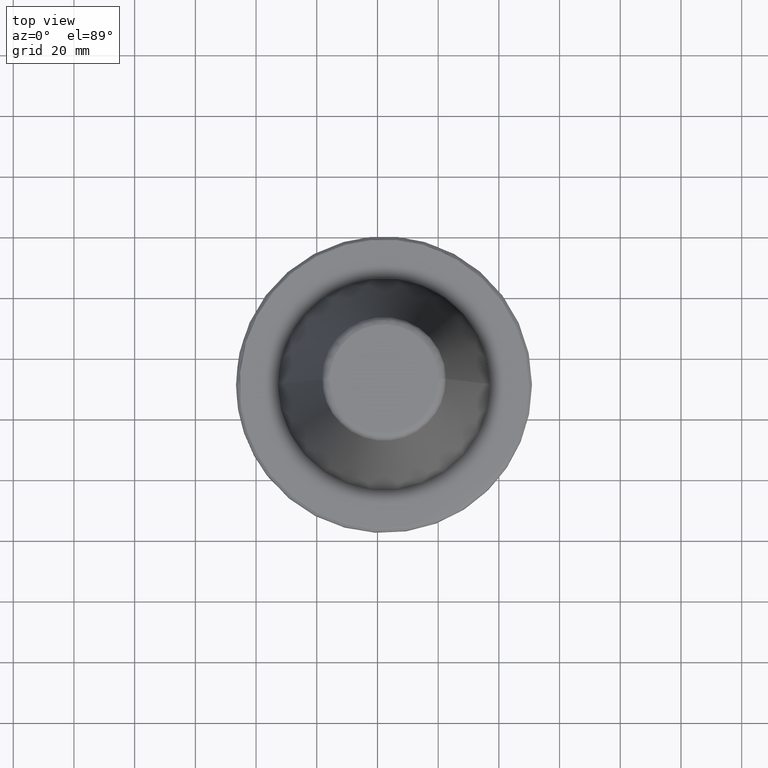
[diagram: clean part render]
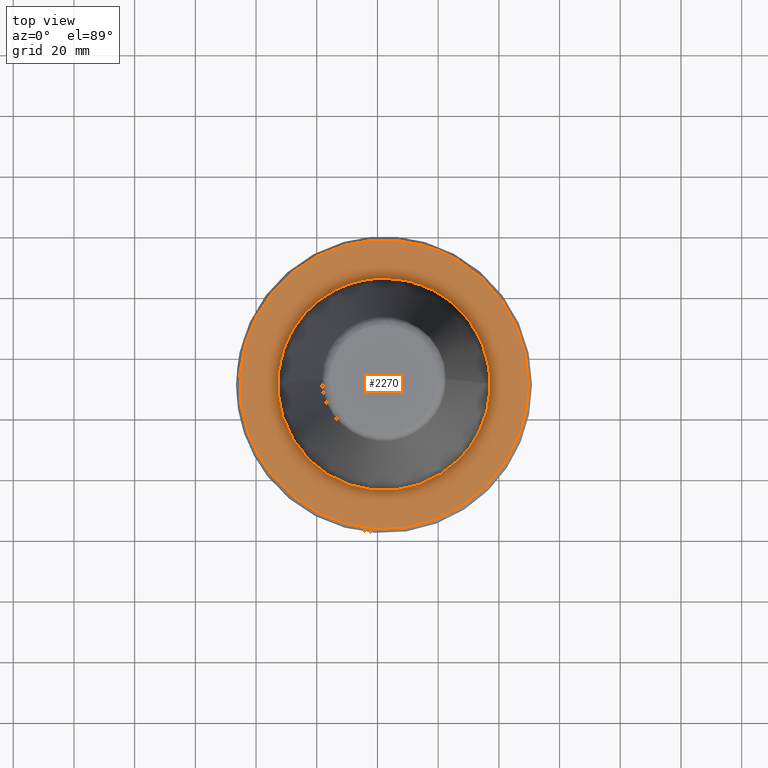
[diagram: same view with one face highlighted and labeled with its STEP entity id]
A machine part, top view. The second image highlights one B-rep face of the part: STEP entity #2270.
In plain terms, the highlighted planar face has unit normal (0, 0, 1).
Its self-contained STEP definition (entity closure, byte-faithful):
#53 = CARTESIAN_POINT ( 'NONE',  ( 155.8001471377603800, 156.4435516789878000, 220.6002788068236700 ) ) ;
#68 = CARTESIAN_POINT ( 'NONE',  ( 103.6291192359977100, 233.9307779446736500, 220.6002788091370500 ) ) ;
#72 = B_SPLINE_CURVE_WITH_KNOTS ( 'NONE', 3,
 ( #4419, #2874, #4038, #1706, #4440, #2096, #4825, #2502, #157, #2888, #559, #3286, #957, #3661, #1344, #4060, #1723, #4453, #2115, #4844, #2519, #170, #2911, #573, #3301, #970, #3682, #1353, #4074, #1738, #4470, #2129, #4860, #2533, #184, #2926, #593, #3313, #983, #3696, #1370, #4086, #1753, #4489, #2144, #4873, #2550, #203, #2936, #606, #3328, #996, #3713, #1388, #4101, #1766, #4505, #2163, #4884, #2564, #222, #2952, #615, #3343 ),
 .UNSPECIFIED., .F., .F.,
 ( 4, 1, 1, 1, 1, 1, 2, 2, 1, 1, 1, 1, 2, 2, 1, 1, 1, 2, 2, 1, 1, 1, 1, 2, 2, 1, 1, 1, 1, 1, 2, 2, 1, 1, 1, 1, 1, 1, 1, 2, 2, 1, 1, 1, 1, 2, 2, 4 ),
 ( 0.0000000000000000000, 0.06249999999994371200, 0.09374999999991551200, 0.1093749999999021200, 0.1171874999998948200, 0.1210937499998904800, 0.1230468749998888900, 0.1249999999998873100, 0.1874999999998274700, 0.2187499999997977200, 0.2343749999997826500, 0.2421874999997753200, 0.2460937499997722900, 0.2499999999997692700, 0.3124999999997104500, 0.3437499999996814200, 0.3593749999996666000, 0.3671874999996594400, 0.3749999999996522800, 0.4374999999996045400, 0.4687499999995803400, 0.4843749999995672900, 0.4921874999995608500, 0.4960937499995579600, 0.4999999999995551300, 0.5624999999995217200, 0.5937499999995049500, 0.6093749999994971800, 0.6171874999994940700, 0.6210937499994930700, 0.6230468749994935200, 0.6249999999994939600, 0.6874999999995060600, 0.7187499999995116100, 0.7343749999995148300, 0.7421874999995158300, 0.7460937499995166100, 0.7480468749995169400, 0.7490234374995167200, 0.7495117187495162800, 0.7499999999995158300, 0.8124999999996366200, 0.8437499999996965800, 0.8593749999997266600, 0.8671874999997409800, 0.8710937499997482000, 0.8749999999997553100, 1.000000000000000000 ),
 .UNSPECIFIED. ) ;
#86 = CARTESIAN_POINT ( 'NONE',  ( 76.04199220231950600, 201.9255132570766300, 220.6002788091371700 ) ) ;
#91 = CARTESIAN_POINT ( 'NONE',  ( 95.12595174288151200, 229.2549839314573900, 220.6002788091370200 ) ) ;
#108 = CARTESIAN_POINT ( 'NONE',  ( 74.60764423819857400, 192.0191381966959600, 220.6002788091370500 ) ) ;
#114 = CARTESIAN_POINT ( 'NONE',  ( 89.44772045215734100, 224.6692275043463100, 220.6002788091370800 ) ) ;
#123 = CARTESIAN_POINT ( 'NONE',  ( 75.61717018492095100, 180.1550116282156200, 220.6002788091370200 ) ) ;
#127 = CARTESIAN_POINT ( 'NONE',  ( 82.37830007239833200, 216.2107248551481600, 220.6002788091371100 ) ) ;
#142 = EDGE_CURVE ( 'NONE', #3132, #1551, #830, .T. ) ;
#145 = CARTESIAN_POINT ( 'NONE',  ( 77.65920442019709900, 173.1951052602065000, 220.6002788091371100 ) ) ;
#157 = CARTESIAN_POINT ( 'NONE',  ( 169.1810604506380600, 197.3447926211943300, 220.6002788091371100 ) ) ;
#161 = CARTESIAN_POINT ( 'NONE',  ( 82.00232855989853000, 164.5522014022500900, 220.6002788091370500 ) ) ;
#170 = CARTESIAN_POINT ( 'NONE',  ( 164.8607630611862200, 211.0786172675604700, 220.6002788091370500 ) ) ;
#173 = CARTESIAN_POINT ( 'NONE',  ( 126.1284916712363800, 224.8661715355004300, 220.6002788091371100 ) ) ;
#184 = CARTESIAN_POINT ( 'NONE',  ( 158.0222279902567700, 221.4076538513791700, 220.6002788091371100 ) ) ;
#203 = CARTESIAN_POINT ( 'NONE',  ( 148.6336813139473300, 229.6263764022931200, 220.6002788091370200 ) ) ;
#207 = CIRCLE ( 'NONE', #3865, 47.58437541406858200 ) ;
#222 = CARTESIAN_POINT ( 'NONE',  ( 142.0572733413985700, 233.3122957326579900, 220.6002788091371700 ) ) ;
#225 = CARTESIAN_POINT ( 'NONE',  ( 95.81297173797814500, 167.0428323715684700, 220.6002788091370800 ) ) ;
#236 = CARTESIAN_POINT ( 'NONE',  ( 166.9327222374638200, 173.9705712791402200, 220.6002788091370500 ) ) ;
#238 = CARTESIAN_POINT ( 'NONE',  ( 90.57312146355410200, 174.9582293051461200, 220.6002788091371100 ) ) ;
#250 = CARTESIAN_POINT ( 'NONE',  ( 169.2158376266570200, 183.0627199777569300, 220.6002788091370500 ) ) ;
#253 = CARTESIAN_POINT ( 'NONE',  ( 87.67558861476396700, 184.0264909058661000, 220.6002788091370200 ) ) ;
#254 = CARTESIAN_POINT ( 'NONE',  ( 128.9628476496946000, 224.4389491235650100, 220.6002788091370500 ) ) ;
#273 = CARTESIAN_POINT ( 'NONE',  ( 87.64974742230192800, 196.0559378404391300, 220.6002788091371100 ) ) ;
#275 = CARTESIAN_POINT ( 'NONE',  ( 137.4920070724355100, 221.5504852539152400, 220.6002788091371100 ) ) ;
#291 = CARTESIAN_POINT ( 'NONE',  ( 90.22061486073192800, 204.4645867771987800, 220.6002788091370200 ) ) ;
#292 = CARTESIAN_POINT ( 'NONE',  ( 147.2213859548325600, 214.5815056310112300, 220.6002788091371400 ) ) ;
#304 = CARTESIAN_POINT ( 'NONE',  ( 95.71551267011658100, 213.0268857582428000, 220.6002788091370800 ) ) ;
#305 = CARTESIAN_POINT ( 'NONE',  ( 152.9824674611688200, 206.6600928291848600, 220.6002788091370000 ) ) ;
#322 = CARTESIAN_POINT ( 'NONE',  ( 103.6702187144247900, 219.8441433258232100, 220.6002788091370500 ) ) ;
#323 = CARTESIAN_POINT ( 'NONE',  ( 156.1145960560951100, 198.5564692791758400, 220.6002788091370800 ) ) ;
#347 = CARTESIAN_POINT ( 'NONE',  ( 112.3268237630479700, 223.6832549463333900, 220.6002788091370800 ) ) ;
#350 = CARTESIAN_POINT ( 'NONE',  ( 156.8230929241047400, 185.2902366288107900, 220.6002788091370800 ) ) ;
#369 = CARTESIAN_POINT ( 'NONE',  ( 121.0517783782077100, 225.0907862089343000, 220.6002788091371100 ) ) ;
#370 = CARTESIAN_POINT ( 'NONE',  ( 154.7009602241421900, 177.2206559220103900, 220.6002788091370800 ) ) ;
#374 = EDGE_CURVE ( 'NONE', #3035, #3016, #207, .T. ) ;
#385 = CARTESIAN_POINT ( 'NONE',  ( 148.5478404744880800, 167.1058220341982100, 220.6002788091370500 ) ) ;
#404 = DIRECTION ( 'NONE',  ( -0.0000000000000000000, -0.0000000000000000000, 1.000000000000000000 ) ) ;
#479 = CARTESIAN_POINT ( 'NONE',  ( 100.9811823710179500, 232.7098020516819800, 220.6002788091370800 ) ) ;
#489 = CARTESIAN_POINT ( 'NONE',  ( 75.44463550959351000, 199.1864029814518300, 220.6002788091371100 ) ) ;
#492 = CARTESIAN_POINT ( 'NONE',  ( 94.88436574065669000, 229.0868632615086000, 220.6002788091370800 ) ) ;
#509 = CARTESIAN_POINT ( 'NONE',  ( 74.55428108414639600, 189.3546909606816400, 220.6002788091370800 ) ) ;
#515 = CARTESIAN_POINT ( 'NONE',  ( 87.14042380711136100, 222.3219421611272500, 220.6002788091370800 ) ) ;
#534 = CARTESIAN_POINT ( 'NONE',  ( 75.68463715941852900, 179.8452908439896600, 220.6002788091371400 ) ) ;
#538 = CARTESIAN_POINT ( 'NONE',  ( 82.27201957790276800, 216.0481669466098800, 220.6002788091371100 ) ) ;
#550 = CARTESIAN_POINT ( 'NONE',  ( 78.83891718227994300, 170.3789838799925500, 220.6002788091370200 ) ) ;
#559 = CARTESIAN_POINT ( 'NONE',  ( 168.9728745589463000, 198.6819042995131500, 220.6002788091370800 ) ) ;
#562 = CARTESIAN_POINT ( 'NONE',  ( 123.2535724787378900, 225.0907862163495600, 220.6002788091370000 ) ) ;
#563 = CARTESIAN_POINT ( 'NONE',  ( 82.15383483436548300, 164.3159658804669000, 220.6002788091370500 ) ) ;
#573 = CARTESIAN_POINT ( 'NONE',  ( 164.4902445898817700, 211.8126621360202600, 220.6002788091371100 ) ) ;
#578 = CARTESIAN_POINT ( 'NONE',  ( 126.7426670279654400, 224.7885562506083400, 220.6002788091370000 ) ) ;
#593 = CARTESIAN_POINT ( 'NONE',  ( 155.6380104850801200, 223.9024105018788800, 220.6002788091370800 ) ) ;
#606 = CARTESIAN_POINT ( 'NONE',  ( 148.4464681726823000, 229.7509812610899200, 220.6002788091369700 ) ) ;
#615 = CARTESIAN_POINT ( 'NONE',  ( 137.3981881280923000, 235.2354118505047300, 220.6002788091371400 ) ) ;
#618 = CARTESIAN_POINT ( 'NONE',  ( 95.75735902823210200, 167.1065370895217100, 220.6002788091370800 ) ) ;
#638 = CARTESIAN_POINT ( 'NONE',  ( 167.3435262829257800, 175.1882700185617500, 220.6002788091370500 ) ) ;
#644 = CARTESIAN_POINT ( 'NONE',  ( 89.60462509200429800, 177.2212920827688800, 220.6002788091370500 ) ) ;
#658 = CARTESIAN_POINT ( 'NONE',  ( 169.6345008767820600, 186.4025194768163100, 220.6002788091370200 ) ) ;
#660 = CARTESIAN_POINT ( 'NONE',  ( 87.48269737175571900, 185.2906391490099100, 220.6002788091370200 ) ) ;
#662 = CARTESIAN_POINT ( 'NONE',  ( 131.4550891671346700, 223.8338864362215200, 220.6002788091370500 ) ) ;
#674 = CARTESIAN_POINT ( 'NONE',  ( 88.12977335554795400, 198.3060878224701800, 220.6002788091370500 ) ) ;
#675 = CARTESIAN_POINT ( 'NONE',  ( 137.8893992963656700, 221.3560806302951400, 220.6002788091370800 ) ) ;
#685 = ORIENTED_EDGE ( 'NONE', *, *, #142, .F. ) ;
#686 = CARTESIAN_POINT ( 'NONE',  ( 91.23886307796306000, 206.5019167058235900, 220.6002788091370500 ) ) ;
#687 = CARTESIAN_POINT ( 'NONE',  ( 148.5317715457493100, 213.0941894438254800, 220.6002788091371100 ) ) ;
#705 = CARTESIAN_POINT ( 'NONE',  ( 95.77432645430668900, 213.0945010348828000, 220.6002788091370800 ) ) ;
#707 = CARTESIAN_POINT ( 'NONE',  ( 153.0671936440624000, 206.5014887864972200, 220.6002788091370500 ) ) ;
#723 = CARTESIAN_POINT ( 'NONE',  ( 106.4163950473326600, 221.3560401905342300, 220.6002788091370200 ) ) ;
#724 = CARTESIAN_POINT ( 'NONE',  ( 156.4671585262014200, 197.0610105284124800, 220.6002788091370200 ) ) ;
#742 = CARTESIAN_POINT ( 'NONE',  ( 112.8504669162791900, 223.8338364086524500, 220.6002788091370200 ) ) ;
#743 = CARTESIAN_POINT ( 'NONE',  ( 156.6303057936378900, 184.0267972879952900, 220.6002788091369400 ) ) ;
#764 = CARTESIAN_POINT ( 'NONE',  ( 153.7328442652353100, 174.9585680195712300, 220.6002788091370800 ) ) ;
#789 = CARTESIAN_POINT ( 'NONE',  ( 148.4922835315382500, 167.0421769183549800, 220.6002788091371400 ) ) ;
#830 = CIRCLE ( 'NONE', #1050, 35.00021221514772000 ) ;
#853 = ORIENTED_EDGE ( 'NONE', *, *, #2812, .T. ) ;
#871 = CARTESIAN_POINT ( 'NONE',  ( 99.93366216561797400, 232.1692097443790300, 220.6002788091370500 ) ) ;
#886 = CARTESIAN_POINT ( 'NONE',  ( 75.32260191577343300, 198.5291855558457100, 220.6002788091370800 ) ) ;
#893 = CARTESIAN_POINT ( 'NONE',  ( 94.81302170618629100, 229.0368801738196400, 220.6002788091370800 ) ) ;
#911 = CARTESIAN_POINT ( 'NONE',  ( 74.69340284335147800, 186.6293484419460400, 220.6002788091370200 ) ) ;
#912 = CARTESIAN_POINT ( 'NONE',  ( 122.1529126039459900, 190.0907862128020700, 220.6002788068236700 ) ) ;
#916 = CARTESIAN_POINT ( 'NONE',  ( 86.25620413828617900, 221.3273246271091600, 220.6002788091370200 ) ) ;
#930 = CARTESIAN_POINT ( 'NONE',  ( 75.92569820914340500, 178.7649607910799400, 220.6002788091370000 ) ) ;
#932 = CARTESIAN_POINT ( 'NONE',  ( 80.83949342530337400, 213.7433451768714300, 220.6002788091370500 ) ) ;
#945 = CARTESIAN_POINT ( 'NONE',  ( 79.36824298925324700, 169.2638093199500400, 220.6002788091370500 ) ) ;
#957 = CARTESIAN_POINT ( 'NONE',  ( 168.0391018156356300, 202.7178218140354900, 220.6002788091370500 ) ) ;
#963 = CARTESIAN_POINT ( 'NONE',  ( 82.20029374120902300, 164.2440090380621900, 220.6002788091370500 ) ) ;
#970 = CARTESIAN_POINT ( 'NONE',  ( 163.7235331861387500, 213.2843696813796200, 220.6002788091370800 ) ) ;
#983 = CARTESIAN_POINT ( 'NONE',  ( 155.0166784532133000, 224.5039328210072500, 220.6002788091370200 ) ) ;
#996 = CARTESIAN_POINT ( 'NONE',  ( 148.4018107213803400, 229.7805447184237300, 220.6002788091370800 ) ) ;
#1017 = CARTESIAN_POINT ( 'NONE',  ( 95.04393963932918200, 167.9309638261196900, 220.6002788091370200 ) ) ;
#1032 = CARTESIAN_POINT ( 'NONE',  ( 167.4344121084517400, 175.4667519684005900, 220.6002788091370500 ) ) ;
#1035 = CARTESIAN_POINT ( 'NONE',  ( 89.46913999716900900, 177.5693142945270300, 220.6002788091371400 ) ) ;
#1041 = CARTESIAN_POINT ( 'NONE',  ( 169.7372271704461500, 190.0907862128575500, 220.6002788091613500 ) ) ;
#1043 = CARTESIAN_POINT ( 'NONE',  ( 87.29052620519445300, 186.8226701264213100, 220.6002788091371100 ) ) ;
#1044 = CARTESIAN_POINT ( 'NONE',  ( 131.9791336593811200, 223.6832179033844700, 220.6002788091370800 ) ) ;
#1050 = AXIS2_PLACEMENT_3D ( 'NONE', #1375, #4088, #1755 ) ;
#1059 = CARTESIAN_POINT ( 'NONE',  ( 88.31681781448085600, 199.0452847801617500, 220.6002788091371100 ) ) ;
#1060 = CARTESIAN_POINT ( 'NONE',  ( 140.6348019078643300, 219.8446326186883900, 220.6002788091370800 ) ) ;
#1076 = CARTESIAN_POINT ( 'NONE',  ( 91.32357480162953300, 206.6605101431758300, 220.6002788091371100 ) ) ;
#1078 = CARTESIAN_POINT ( 'NONE',  ( 148.5905721600081500, 213.0265955901638800, 220.6002788091370500 ) ) ;
#1093 = CARTESIAN_POINT ( 'NONE',  ( 97.08392363240687900, 214.5810518690102800, 220.6002788091370800 ) ) ;
#1094 = CARTESIAN_POINT ( 'NONE',  ( 154.0848902585399900, 204.4652724088743100, 220.6002788091371100 ) ) ;
#1106 = CARTESIAN_POINT ( 'NONE',  ( 106.8139966890166900, 221.5505721783230800, 220.6002788091370800 ) ) ;
#1107 = CARTESIAN_POINT ( 'NONE',  ( 156.8731523267183000, 194.5366726658078800, 220.6002788091371100 ) ) ;
#1134 = CARTESIAN_POINT ( 'NONE',  ( 115.3419081894372900, 224.4387217373804900, 220.6002788091370500 ) ) ;
#1136 = CARTESIAN_POINT ( 'NONE',  ( 156.2699031531552400, 182.2743222826587200, 220.6002788091370500 ) ) ;
#1154 = CARTESIAN_POINT ( 'NONE',  ( 153.0207027135154800, 173.5928049763753100, 220.6002788091371100 ) ) ;
#1168 = CARTESIAN_POINT ( 'NONE',  ( 148.1689733692259100, 166.6760461222603700, 220.6002788091370000 ) ) ;
#1230 = VERTEX_POINT ( 'NONE', #3487 ) ;
#1237 = CARTESIAN_POINT ( 'NONE',  ( 105.8555755138604900, 234.8007767126781600, 220.6002788091371100 ) ) ;
#1259 = CARTESIAN_POINT ( 'NONE',  ( 99.68579736265137100, 232.0371369737622700, 220.6002788091370500 ) ) ;
#1275 = CARTESIAN_POINT ( 'NONE',  ( 75.09397419528463000, 197.2216297260443400, 220.6002788091371100 ) ) ;
#1279 = CARTESIAN_POINT ( 'NONE',  ( 92.81036120500991200, 227.5737335695179100, 220.6002788091370800 ) ) ;
#1290 = CARTESIAN_POINT ( 'NONE',  ( 74.74637686122129300, 185.9808764364124400, 220.6002788091370800 ) ) ;
#1291 = DIRECTION ( 'NONE',  ( 1.000000000000000000, 0.0000000000000000000, 0.0000000000000000000 ) ) ;
#1293 = CARTESIAN_POINT ( 'NONE',  ( 86.04901813951464400, 221.0872315163303500, 220.6002788091370200 ) ) ;
#1309 = CARTESIAN_POINT ( 'NONE',  ( 76.79072552044935700, 175.7045763037203600, 220.6002788091370500 ) ) ;
#1316 = CARTESIAN_POINT ( 'NONE',  ( 79.60666998942160400, 211.4017334350108700, 220.6002788091371100 ) ) ;
#1332 = CARTESIAN_POINT ( 'NONE',  ( 79.49801504744176800, 168.9998551750257100, 220.6002788091370800 ) ) ;
#1344 = CARTESIAN_POINT ( 'NONE',  ( 167.5585361362101700, 204.3257835462353600, 220.6002788091370800 ) ) ;
#1347 = CARTESIAN_POINT ( 'NONE',  ( 84.14198551130014900, 161.4142542876560400, 220.6002788091371400 ) ) ;
#1353 = CARTESIAN_POINT ( 'NONE',  ( 161.4424097954600700, 216.9493181204254300, 220.6002788091370500 ) ) ;
#1370 = CARTESIAN_POINT ( 'NONE',  ( 154.8672576944256000, 224.6458505585625600, 220.6002788091370200 ) ) ;
#1375 = CARTESIAN_POINT ( 'NONE',  ( 122.1529126039459900, 190.0907862128020700, 220.6002788202960100 ) ) ;
#1383 = B_SPLINE_CURVE_WITH_KNOTS ( 'NONE', 3,
 ( #1990, #3563, #3950, #1621, #4341, #2004, #4739, #1400, #4122, #1785, #4514, #2179, #4903, #2578, #236, #2974, #638, #3356, #1032, #3745, #1414, #4139, #1802, #4532, #2192, #4918, #2601, #250, #2987, #658, #3375, #1041 ),
 .UNSPECIFIED., .F., .F.,
 ( 4, 2, 2, 1, 2, 2, 1, 1, 1, 1, 2, 2, 1, 1, 1, 1, 2, 2, 1, 1, 1, 4 ),
 ( 0.3976995804853581400, 0.4729871329246958000, 0.5106309091443650400, 0.5482746853640343400, 0.6235622378033736100, 0.6329731818582914300, 0.6423841259132093700, 0.6612060140230452400, 0.6988497902427168700, 0.7364935664623886200, 0.7459045105173063300, 0.7506099825447646300, 0.7553154545722230400, 0.7741373426820553600, 0.8494248951213856400, 0.8682467832312175100, 0.8729522552586759200, 0.8753049912724042400, 0.8776577272861325600, 0.8870686713410451700, 0.9247124475606973700, 1.000000000000000000 ),
 .UNSPECIFIED. ) ;
#1388 = CARTESIAN_POINT ( 'NONE',  ( 147.3637221252218400, 230.4664691473307400, 220.6002788091370500 ) ) ;
#1400 = CARTESIAN_POINT ( 'NONE',  ( 163.5621056491361000, 166.5934918623470100, 220.6002788091370500 ) ) ;
#1403 = CARTESIAN_POINT ( 'NONE',  ( 92.53641379245395600, 171.3972563123022600, 220.6002788091370000 ) ) ;
#1414 = CARTESIAN_POINT ( 'NONE',  ( 168.1706199230914400, 177.8532522819939500, 220.6002788091370200 ) ) ;
#1419 = CARTESIAN_POINT ( 'NONE',  ( 89.07515608848764500, 178.6317344657363200, 220.6002788091370800 ) ) ;
#1435 = CARTESIAN_POINT ( 'NONE',  ( 87.13822954604866300, 189.9096531419149300, 220.6002788091370200 ) ) ;
#1437 = CARTESIAN_POINT ( 'NONE',  ( 132.3190427226628000, 223.5823072785381700, 220.6002788091370500 ) ) ;
#1445 = EDGE_LOOP ( 'NONE', ( #685, #3502, #3461 ) ) ;
#1453 = CARTESIAN_POINT ( 'NONE',  ( 88.87807143495069800, 200.9788620490202500, 220.6002788091370500 ) ) ;
#1454 = CARTESIAN_POINT ( 'NONE',  ( 142.8928996359738900, 218.2846074599876000, 220.6002788091370500 ) ) ;
#1465 = CARTESIAN_POINT ( 'NONE',  ( 91.60553748622301400, 207.1776415421352100, 220.6002788091369700 ) ) ;
#1466 = CARTESIAN_POINT ( 'NONE',  ( 148.8598198594620200, 212.7141633788417000, 220.6002788091370500 ) ) ;
#1471 = B_SPLINE_CURVE_WITH_KNOTS ( 'NONE', 3,
 ( #2554, #1771, #2165, #4887, #2569, #225, #2959, #618, #3347, #1017, #3728, #1403, #4127, #1789, #4517, #2182, #4907, #2581, #238, #2976, #644, #3359, #1035, #3748, #1419, #4142, #1806, #4535, #2196, #4920, #2605, #253, #2990, #660, #3378, #1043, #3763, #1435, #4157, #1817, #4554, #2215, #4934, #2620, #273, #3002, #674, #3391, #1059, #3772, #1453, #4174, #1831, #4565, #2234, #4950, #2633, #291, #3022, #686, #3409, #1076, #3790, #1465, #4191, #1849, #4580, #2250, #4969, #2652, #304, #3037, #705, #3425, #1093, #3807, #1485, #4205, #1870, #4599, #2265, #4986, #2670, #322, #3053, #723, #3448, #1106, #3826, #1501, #4227, #1882, #4621, #2289, #5004, #2688, #347, #3076, #742, #3471, #1134, #3843, #1524, #4248, #1903, #4636, #2311, #5025, #2707, #369, #3098 ),
 .UNSPECIFIED., .F., .F.,
 ( 4, 1, 1, 1, 2, 2, 1, 1, 1, 1, 1, 2, 2, 1, 1, 2, 2, 1, 1, 2, 2, 1, 1, 2, 2, 2, 2, 1, 2, 2, 2, 2, 1, 1, 1, 2, 2, 1, 1, 2, 2, 1, 1, 1, 1, 1, 1, 1, 1, 2, 2, 1, 1, 1, 1, 2, 2, 1, 1, 1, 2, 2, 1, 1, 1, 1, 1, 2, 2, 1, 1, 1, 1, 2, 2, 1, 1, 1, 4 ),
 ( 0.2923024445377374600, 0.3033602188418364500, 0.3088891059938858000, 0.3116535495699104800, 0.3123446604639164000, 0.3130357713579223200, 0.3144179931459341000, 0.3365335417541197600, 0.3586490903623054100, 0.3697068646663979100, 0.3724713082424212000, 0.3738535300304329200, 0.3752357518184446500, 0.3807646389704924500, 0.4028801875786844300, 0.4056446311547085600, 0.4084090747307326800, 0.4139379618827808100, 0.4249957361868770300, 0.4360535104909733000, 0.4415823976430211000, 0.4471112847950690100, 0.4581690590991647800, 0.4636979462512123600, 0.4692268334032599900, 0.4913423820114490900, 0.5134579306196382900, 0.5245157049237329000, 0.5300445920757799200, 0.5355734792278268300, 0.5576890278360131500, 0.5632179149880598400, 0.5687468021401065300, 0.5798045764442005800, 0.5908623507482945200, 0.5936267943243177500, 0.5950090161123294800, 0.5963912379003412100, 0.6019201250523897900, 0.6240356736605837700, 0.6254178954485960500, 0.6268001172366082200, 0.6295645608126334600, 0.6350934479646841400, 0.6461512222687845200, 0.6682667708769853800, 0.6793245451810859800, 0.6848534323331365600, 0.6862356541211492900, 0.6869267650151554800, 0.6876178759091616800, 0.6903823194851866900, 0.7346134167015903000, 0.7456711910056912400, 0.7484356345817164700, 0.7498178563697292000, 0.7512000781577419200, 0.7567289653097943900, 0.7788445139180038000, 0.8009600625262131000, 0.8120178368303178100, 0.8127089477243242300, 0.8134000586183306500, 0.8147822804063430400, 0.8175467239823677200, 0.8230756111344171800, 0.8673067083508142500, 0.8728355955028638300, 0.8756000390788885000, 0.8783644826549131800, 0.8894222569590117800, 0.9115378055672097600, 0.9336533541754077300, 0.9364177977514325200, 0.9378000195394449200, 0.9391822413274572000, 0.9447111284795068900, 0.9557689027836057100, 1.000000000000000000 ),
 .UNSPECIFIED. ) ;
#1485 = CARTESIAN_POINT ( 'NONE',  ( 100.4881045863053800, 217.5841766579939100, 220.6002788091370800 ) ) ;
#1486 = CARTESIAN_POINT ( 'NONE',  ( 154.6919244889879200, 202.9837145672377400, 220.6002788091370000 ) ) ;
#1501 = CARTESIAN_POINT ( 'NONE',  ( 106.9126947467391900, 221.5985537312966500, 220.6002788091369700 ) ) ;
#1505 = CARTESIAN_POINT ( 'NONE',  ( 157.0357174608760100, 192.9994069127214100, 220.6002788091370500 ) ) ;
#1524 = CARTESIAN_POINT ( 'NONE',  ( 117.3390231322231300, 224.7582392582914400, 220.6002788091371100 ) ) ;
#1525 = CARTESIAN_POINT ( 'NONE',  ( 156.0899493192181400, 181.5268630512005400, 220.6002788091370500 ) ) ;
#1537 = CARTESIAN_POINT ( 'NONE',  ( 152.9376109194574800, 173.4382575887464700, 220.6002788091371100 ) ) ;
#1551 = VERTEX_POINT ( 'NONE', #2061 ) ;
#1565 = CARTESIAN_POINT ( 'NONE',  ( 147.2076668557629400, 165.6475692638222800, 220.6002788091371100 ) ) ;
#1621 = CARTESIAN_POINT ( 'NONE',  ( 159.5266576648811800, 160.6269956474961000, 220.6002788091370200 ) ) ;
#1626 = CARTESIAN_POINT ( 'NONE',  ( 104.8099947823166600, 234.4022940655794400, 220.6002788091370200 ) ) ;
#1639 = CARTESIAN_POINT ( 'NONE',  ( 99.61271298189687700, 231.9979121212280100, 220.6002788091371100 ) ) ;
#1652 = CARTESIAN_POINT ( 'NONE',  ( 74.70856241271059200, 193.8052955228957000, 220.6002788091369700 ) ) ;
#1656 = CARTESIAN_POINT ( 'NONE',  ( 90.83986547534677000, 225.9218626135928200, 220.6002788091370500 ) ) ;
#1679 = CARTESIAN_POINT ( 'NONE',  ( 74.76380042312924000, 185.7846370114914400, 220.6002788091371400 ) ) ;
#1683 = CARTESIAN_POINT ( 'NONE',  ( 85.29025902490296600, 220.1988978637339500, 220.6002788091371100 ) ) ;
#1699 = CARTESIAN_POINT ( 'NONE',  ( 77.19993529552451200, 174.4855670326423400, 220.6002788091370800 ) ) ;
#1706 = CARTESIAN_POINT ( 'NONE',  ( 169.4592932167177800, 195.2899385570553900, 220.6002788091371100 ) ) ;
#1712 = CARTESIAN_POINT ( 'NONE',  ( 79.53781672445775500, 168.9195481395827000, 220.6002788091371100 ) ) ;
#1723 = CARTESIAN_POINT ( 'NONE',  ( 167.4368462744106100, 204.7070909139651200, 220.6002788091370500 ) ) ;
#1738 = CARTESIAN_POINT ( 'NONE',  ( 160.4225257926518400, 218.3705484399084200, 220.6002788091370500 ) ) ;
#1753 = CARTESIAN_POINT ( 'NONE',  ( 153.8101697092146200, 225.6432135583641200, 220.6002788091371400 ) ) ;
#1755 = DIRECTION ( 'NONE',  ( 1.000000000000000000, 0.0000000000000000000, 0.0000000000000000000 ) ) ;
#1766 = CARTESIAN_POINT ( 'NONE',  ( 143.9128897855573800, 232.4162902095030500, 220.6002788091371100 ) ) ;
#1771 = CARTESIAN_POINT ( 'NONE',  ( 97.09812987268321600, 165.6476580993655100, 220.6002788091371100 ) ) ;
#1785 = CARTESIAN_POINT ( 'NONE',  ( 164.4900623260695100, 168.3681523668985800, 220.6002788091370800 ) ) ;
#1789 = CARTESIAN_POINT ( 'NONE',  ( 91.45210837746029100, 173.2834746236251800, 220.6002788091370800 ) ) ;
#1802 = CARTESIAN_POINT ( 'NONE',  ( 169.0596867886364700, 182.0772797054281400, 220.6002788091371100 ) ) ;
#1806 = CARTESIAN_POINT ( 'NONE',  ( 88.40599504078055300, 180.7956551335490500, 220.6002788091370200 ) ) ;
#1817 = CARTESIAN_POINT ( 'NONE',  ( 87.23106266431264500, 192.4854667937845800, 220.6002788091370800 ) ) ;
#1818 = CARTESIAN_POINT ( 'NONE',  ( 135.4640285068095100, 222.4956100178344800, 220.6002788091371100 ) ) ;
#1831 = CARTESIAN_POINT ( 'NONE',  ( 89.47854070322681300, 202.6367433894957100, 220.6002788091371100 ) ) ;
#1832 = CARTESIAN_POINT ( 'NONE',  ( 143.1269211202790900, 218.1103121088114300, 220.6002788091370500 ) ) ;
#1849 = CARTESIAN_POINT ( 'NONE',  ( 92.86619797008019400, 209.2971577576047900, 220.6002788091370800 ) ) ;
#1851 = CARTESIAN_POINT ( 'NONE',  ( 150.3693833792993900, 210.8374565146340300, 220.6002788091370500 ) ) ;
#1870 = CARTESIAN_POINT ( 'NONE',  ( 101.0922892394361300, 218.0452664486491300, 220.6002788091370800 ) ) ;
#1871 = CARTESIAN_POINT ( 'NONE',  ( 154.8274613608894300, 202.6363051443372600, 220.6002788091370800 ) ) ;
#1882 = CARTESIAN_POINT ( 'NONE',  ( 107.3283928258619700, 221.7970965598436200, 220.6002788091370800 ) ) ;
#1883 = CARTESIAN_POINT ( 'NONE',  ( 157.1577285905260900, 190.9428398336442900, 220.6002788091370800 ) ) ;
#1894 = FACE_BOUND ( 'NONE', #1445, .T. ) ;
#1903 = CARTESIAN_POINT ( 'NONE',  ( 117.4950025161882400, 224.7794734952911700, 220.6002788091370500 ) ) ;
#1904 = CARTESIAN_POINT ( 'NONE',  ( 155.6254972525204300, 179.8266799507350700, 220.6002788091371100 ) ) ;
#1923 = CARTESIAN_POINT ( 'NONE',  ( 152.5405998040700400, 172.7158157174835700, 220.6002788091370800 ) ) ;
#1990 = CARTESIAN_POINT ( 'NONE',  ( 155.8001471377603800, 156.4435516789878000, 220.6002788068236700 ) ) ;
#2004 = CARTESIAN_POINT ( 'NONE',  ( 160.9687604202131300, 162.5544420237399100, 220.6002788091371400 ) ) ;
#2009 = DIRECTION ( 'NONE',  ( 0.0000000000000000000, 0.0000000000000000000, 1.000000000000000000 ) ) ;
#2011 = CARTESIAN_POINT ( 'NONE',  ( 104.5621061934818100, 234.3042576336885100, 220.6002788091370500 ) ) ;
#2035 = CARTESIAN_POINT ( 'NONE',  ( 97.53644817584486800, 230.8320849965094500, 220.6002788091370800 ) ) ;
#2051 = CARTESIAN_POINT ( 'NONE',  ( 74.62519703928363400, 192.4175608080191200, 220.6002788091371100 ) ) ;
#2055 = CARTESIAN_POINT ( 'NONE',  ( 90.38162858310310800, 225.5147333848026700, 220.6002788091370800 ) ) ;
#2061 = CARTESIAN_POINT ( 'NONE',  ( 146.9018000042452200, 165.3418988125029000, 220.6002788202960100 ) ) ;
#2071 = CARTESIAN_POINT ( 'NONE',  ( 75.05032818351422500, 183.2045550387814200, 220.6002788091370800 ) ) ;
#2074 = CARTESIAN_POINT ( 'NONE',  ( 83.25250151464494800, 217.5043694458204000, 220.6002788091370000 ) ) ;
#2084 = CARTESIAN_POINT ( 'NONE',  ( 77.30160121188228600, 174.1965232245694300, 220.6002788091371100 ) ) ;
#2096 = CARTESIAN_POINT ( 'NONE',  ( 169.2495475134464900, 196.8885357352189700, 220.6002788091370500 ) ) ;
#2104 = CARTESIAN_POINT ( 'NONE',  ( 80.58302727716338200, 166.9040091954300100, 220.6002788091370800 ) ) ;
#2115 = CARTESIAN_POINT ( 'NONE',  ( 166.9804047466503500, 206.1065744025702300, 220.6002788091370200 ) ) ;
#2129 = CARTESIAN_POINT ( 'NONE',  ( 160.1727643390601100, 218.7048021603500800, 220.6002788091370500 ) ) ;
#2144 = CARTESIAN_POINT ( 'NONE',  ( 150.3537789343184000, 228.4291204787872400, 220.6002788091370800 ) ) ;
#2163 = CARTESIAN_POINT ( 'NONE',  ( 142.4719696815014100, 233.1193196584561900, 220.6002788091370200 ) ) ;
#2165 = CARTESIAN_POINT ( 'NONE',  ( 96.64766696899201300, 166.1153536647594000, 220.6002788091370500 ) ) ;
#2179 = CARTESIAN_POINT ( 'NONE',  ( 164.9341297542909200, 169.2505209746664100, 220.6002788091370800 ) ) ;
#2182 = CARTESIAN_POINT ( 'NONE',  ( 91.31192675341743800, 173.5427666616306200, 220.6002788091370200 ) ) ;
#2192 = CARTESIAN_POINT ( 'NONE',  ( 169.1589147234030000, 182.6945076253837800, 220.6002788091369700 ) ) ;
#2196 = CARTESIAN_POINT ( 'NONE',  ( 88.15372519934538800, 181.7768548181762200, 220.6002788091370800 ) ) ;
#2197 = CARTESIAN_POINT ( 'NONE',  ( 126.8510331125959900, 224.7740571140362000, 220.6002788091370800 ) ) ;
#2215 = CARTESIAN_POINT ( 'NONE',  ( 87.37377920709886300, 194.0250090994581700, 220.6002788091370500 ) ) ;
#2216 = CARTESIAN_POINT ( 'NONE',  ( 137.2547867967952900, 221.6652508031210100, 220.6002788091370800 ) ) ;
#2234 = CARTESIAN_POINT ( 'NONE',  ( 89.56902055939491400, 202.8694408874505900, 220.6002788091370200 ) ) ;
#2236 = CARTESIAN_POINT ( 'NONE',  ( 143.3437741997404100, 217.9470036512651300, 220.6002788091370200 ) ) ;
#2250 = CARTESIAN_POINT ( 'NONE',  ( 94.95434713452863200, 212.1279644433422200, 220.6002788091370500 ) ) ;
#2251 = CARTESIAN_POINT ( 'NONE',  ( 152.2936229684189000, 207.8936449075495100, 220.6002788091370800 ) ) ;
#2265 = CARTESIAN_POINT ( 'NONE',  ( 101.2160092358765000, 218.1380443703059200, 220.6002788091370800 ) ) ;
#2266 = CARTESIAN_POINT ( 'NONE',  ( 155.4275737723302500, 200.9794366268706400, 220.6002788091370500 ) ) ;
#2270 = ADVANCED_FACE ( 'NONE', ( #4765, #1894 ), #4350, .T. ) ;
#2289 = CARTESIAN_POINT ( 'NONE',  ( 110.4760533586187400, 223.1196651093814600, 220.6002788091371100 ) ) ;
#2290 = CARTESIAN_POINT ( 'NONE',  ( 157.0963965908821400, 187.8500674276708700, 220.6002788091371100 ) ) ;
#2311 = CARTESIAN_POINT ( 'NONE',  ( 117.7336543799019600, 224.8110339901964800, 220.6002788091370500 ) ) ;
#2312 = CARTESIAN_POINT ( 'NONE',  ( 154.9704369993099800, 177.9222395415279400, 220.6002788091371100 ) ) ;
#2321 = CARTESIAN_POINT ( 'NONE',  ( 150.4659702960103100, 169.4493159639566500, 220.6002788091370200 ) ) ;
#2367 = AXIS2_PLACEMENT_3D ( 'NONE', #2745, #404, #3123 ) ;
#2417 = CARTESIAN_POINT ( 'NONE',  ( 104.4891208889129500, 234.2751520768578600, 220.6002788091371100 ) ) ;
#2435 = CARTESIAN_POINT ( 'NONE',  ( 76.47503142299240200, 203.4677970619203500, 220.6002788091371100 ) ) ;
#2438 = CARTESIAN_POINT ( 'NONE',  ( 95.46554237214977000, 229.4881044997461300, 220.6002788091370500 ) ) ;
#2441 = CARTESIAN_POINT ( 'NONE',  ( 122.1529126150889900, 225.0907862014598500, 220.6002788089773500 ) ) ;
#2447 = CARTESIAN_POINT ( 'NONE',  ( 74.61042665299395100, 192.0865813946180700, 220.6002788091370500 ) ) ;
#2452 = CARTESIAN_POINT ( 'NONE',  ( 90.24644730837540900, 225.3930292037622100, 220.6002788091369700 ) ) ;
#2454 = EDGE_CURVE ( 'NONE', #3101, #3035, #72, .T. ) ;
#2469 = CARTESIAN_POINT ( 'NONE',  ( 75.52569171548034900, 180.5890711070738100, 220.6002788091370800 ) ) ;
#2477 = CARTESIAN_POINT ( 'NONE',  ( 82.48561923242608900, 216.3739059870310100, 220.6002788091370500 ) ) ;
#2494 = CARTESIAN_POINT ( 'NONE',  ( 77.33281469387941300, 174.1087144941813300, 220.6002788091370000 ) ) ;
#2502 = CARTESIAN_POINT ( 'NONE',  ( 169.1927140163218700, 197.2687633565162700, 220.6002788091370500 ) ) ;
#2511 = CARTESIAN_POINT ( 'NONE',  ( 81.79230796532846200, 164.8841018576191900, 220.6002788091370500 ) ) ;
#2519 = CARTESIAN_POINT ( 'NONE',  ( 165.3606787090802800, 210.0436015835724400, 220.6002788091370800 ) ) ;
#2521 = CARTESIAN_POINT ( 'NONE',  ( 124.6252784702132500, 225.0261489054564400, 220.6002788091370000 ) ) ;
#2533 = CARTESIAN_POINT ( 'NONE',  ( 159.2767866627719400, 219.8875000902703800, 220.6002788091370200 ) ) ;
#2550 = CARTESIAN_POINT ( 'NONE',  ( 148.8824206088134200, 229.4591308730996700, 220.6002788091370800 ) ) ;
#2554 = CARTESIAN_POINT ( 'NONE',  ( 97.40402520364685300, 165.3418988125028200, 220.6002788202960100 ) ) ;
#2564 = CARTESIAN_POINT ( 'NONE',  ( 142.1255691326141500, 233.2807777983063000, 220.6002788091371400 ) ) ;
#2569 = CARTESIAN_POINT ( 'NONE',  ( 95.90244504597394800, 166.9406614070979300, 220.6002788091371400 ) ) ;
#2578 = CARTESIAN_POINT ( 'NONE',  ( 166.3106363086637900, 172.3071274899574200, 220.6002788091370800 ) ) ;
#2581 = CARTESIAN_POINT ( 'NONE',  ( 91.14001169170832400, 173.8654588275466000, 220.6002788091370800 ) ) ;
#2601 = CARTESIAN_POINT ( 'NONE',  ( 169.1807260915987900, 182.8344765102928000, 220.6002788091371400 ) ) ;
#2605 = CARTESIAN_POINT ( 'NONE',  ( 87.86731085121813600, 183.0225525256278700, 220.6002788091370000 ) ) ;
#2607 = CARTESIAN_POINT ( 'NONE',  ( 127.6604762968033000, 224.6611758056536400, 220.6002788091370500 ) ) ;
#2620 = CARTESIAN_POINT ( 'NONE',  ( 87.46890518686575400, 194.7903561460037200, 220.6002788091371100 ) ) ;
#2621 = CARTESIAN_POINT ( 'NONE',  ( 137.4525083246809100, 221.5697122286439700, 220.6002788091370800 ) ) ;
#2633 = CARTESIAN_POINT ( 'NONE',  ( 89.72780688373133300, 203.2700725269557700, 220.6002788091370500 ) ) ;
#2634 = CARTESIAN_POINT ( 'NONE',  ( 145.5912010234745000, 216.1604873169310100, 220.6002788091370800 ) ) ;
#2652 = CARTESIAN_POINT ( 'NONE',  ( 95.65757581869452500, 212.9600495224584100, 220.6002788091371400 ) ) ;
#2653 = CARTESIAN_POINT ( 'NONE',  ( 152.8985986406556800, 206.8158368301396300, 220.6002788091370200 ) ) ;
#2670 = CARTESIAN_POINT ( 'NONE',  ( 102.2052502378564800, 218.8641923522146200, 220.6002788091370200 ) ) ;
#2673 = CARTESIAN_POINT ( 'NONE',  ( 155.9890725384300400, 199.0449708674414600, 220.6002788091371400 ) ) ;
#2688 = CARTESIAN_POINT ( 'NONE',  ( 112.2391690473614600, 223.6575137168857500, 220.6002788091370200 ) ) ;
#2689 = CARTESIAN_POINT ( 'NONE',  ( 156.8570389509519000, 185.5421046511039500, 220.6002788091371100 ) ) ;
#2707 = CARTESIAN_POINT ( 'NONE',  ( 119.6799096973854300, 225.0261503213178600, 220.6002788091370500 ) ) ;
#2708 = CARTESIAN_POINT ( 'NONE',  ( 154.7907178572863500, 177.4500298253912000, 220.6002788091370500 ) ) ;
#2726 = CARTESIAN_POINT ( 'NONE',  ( 148.6058814870087000, 167.1725879729126500, 220.6002788091370500 ) ) ;
#2735 = EDGE_LOOP ( 'NONE', ( #4225, #3464, #4150, #853, #5040 ) ) ;
#2745 = CARTESIAN_POINT ( 'NONE',  ( 122.1529126039459900, 190.0907862128020700, 220.6002788068236700 ) ) ;
#2799 = CARTESIAN_POINT ( 'NONE',  ( 108.4817118257963400, 235.6768880525455600, 220.6002788091370800 ) ) ;
#2810 = CARTESIAN_POINT ( 'NONE',  ( 102.3941323471063400, 233.3952295379255300, 220.6002788091371400 ) ) ;
#2812 = EDGE_CURVE ( 'NONE', #4531, #3101, #1383, .T. ) ;
#2825 = CARTESIAN_POINT ( 'NONE',  ( 75.62847231731629400, 200.1032600844837900, 220.6002788091370800 ) ) ;
#2830 = CARTESIAN_POINT ( 'NONE',  ( 94.95675217874888600, 229.1374460952959300, 220.6002788091371100 ) ) ;
#2848 = CARTESIAN_POINT ( 'NONE',  ( 74.56430681881910500, 190.9139195782466600, 220.6002788091371400 ) ) ;
#2851 = CARTESIAN_POINT ( 'NONE',  ( 88.35479573235348000, 223.6133548303509400, 220.6002788091370500 ) ) ;
#2865 = CARTESIAN_POINT ( 'NONE',  ( 75.65750035475281300, 179.9691564493972500, 220.6002788091370500 ) ) ;
#2869 = CARTESIAN_POINT ( 'NONE',  ( 82.30696686587678800, 216.1017768289351900, 220.6002788091370200 ) ) ;
#2874 = CARTESIAN_POINT ( 'NONE',  ( 169.7373257220621700, 191.3178284207480100, 220.6002788091371100 ) ) ;
#2880 = CARTESIAN_POINT ( 'NONE',  ( 78.17252943497017300, 171.8823379008182700, 220.6002788091371100 ) ) ;
#2888 = CARTESIAN_POINT ( 'NONE',  ( 169.1754053761921700, 197.3814049470461500, 220.6002788091370800 ) ) ;
#2893 = CARTESIAN_POINT ( 'NONE',  ( 82.10824676574166900, 164.3867601853796400, 220.6002788091370200 ) ) ;
#2911 = CARTESIAN_POINT ( 'NONE',  ( 164.6394003924505700, 211.5194149214839600, 220.6002788091370500 ) ) ;
#2914 = CARTESIAN_POINT ( 'NONE',  ( 126.5721208620060000, 224.8110278198521400, 220.6002788091370500 ) ) ;
#2920 = VERTEX_POINT ( 'NONE', #2441 ) ;
#2926 = CARTESIAN_POINT ( 'NONE',  ( 156.4507248752127000, 223.0865880404209900, 220.6002788091370500 ) ) ;
#2936 = CARTESIAN_POINT ( 'NONE',  ( 148.5089352835912600, 229.7095252879765000, 220.6002788091370200 ) ) ;
#2952 = CARTESIAN_POINT ( 'NONE',  ( 139.7260944320965200, 234.3812385442028600, 220.6002788091370500 ) ) ;
#2959 = CARTESIAN_POINT ( 'NONE',  ( 95.77722507946542400, 167.0837469465112700, 220.6002788091370500 ) ) ;
#2974 = CARTESIAN_POINT ( 'NONE',  ( 167.2500312397348500, 174.9067086804105000, 220.6002788091370500 ) ) ;
#2976 = CARTESIAN_POINT ( 'NONE',  ( 90.01424416747214300, 176.1906234513830600, 220.6002788091370200 ) ) ;
#2987 = CARTESIAN_POINT ( 'NONE',  ( 169.3562837664417200, 184.0218989195967100, 220.6002788091370500 ) ) ;
#2990 = CARTESIAN_POINT ( 'NONE',  ( 87.55655305348426500, 184.7843286563750700, 220.6002788091370200 ) ) ;
#2991 = CARTESIAN_POINT ( 'NONE',  ( 130.4782580793381600, 224.0962514741613900, 220.6002788091371400 ) ) ;
#3002 = CARTESIAN_POINT ( 'NONE',  ( 87.83856689906826900, 197.0604326051438000, 220.6002788091370500 ) ) ;
#3003 = CARTESIAN_POINT ( 'NONE',  ( 137.5143239807262900, 221.5395969547074100, 220.6002788091371400 ) ) ;
#3016 = VERTEX_POINT ( 'NONE', #5056 ) ;
#3022 = CARTESIAN_POINT ( 'NONE',  ( 90.74923148126765700, 205.5756223936947200, 220.6002788091371400 ) ) ;
#3024 = CARTESIAN_POINT ( 'NONE',  ( 148.4424165412523300, 213.1964906801809400, 220.6002788091371400 ) ) ;
#3035 = VERTEX_POINT ( 'NONE', #3165 ) ;
#3037 = CARTESIAN_POINT ( 'NONE',  ( 95.75419829334690300, 213.0714013538630800, 220.6002788091371100 ) ) ;
#3038 = CARTESIAN_POINT ( 'NONE',  ( 153.0381365533660600, 206.5560947886944800, 220.6002788091370800 ) ) ;
#3053 = CARTESIAN_POINT ( 'NONE',  ( 105.3671263101282300, 220.8206664241234000, 220.6002788091371100 ) ) ;
#3054 = CARTESIAN_POINT ( 'NONE',  ( 156.1761379380385500, 198.3058138666377500, 220.6002788091370200 ) ) ;
#3076 = CARTESIAN_POINT ( 'NONE',  ( 112.4763573685284700, 223.7266401609849100, 220.6002788091370800 ) ) ;
#3077 = CARTESIAN_POINT ( 'NONE',  ( 156.7492890715947500, 184.7842630849796100, 220.6002788091370800 ) ) ;
#3098 = CARTESIAN_POINT ( 'NONE',  ( 122.1529126150889900, 225.0907862014598500, 220.6002788089773500 ) ) ;
#3100 = CARTESIAN_POINT ( 'NONE',  ( 154.2917159451852500, 176.1908671398413400, 220.6002788091370500 ) ) ;
#3101 = VERTEX_POINT ( 'NONE', #3272 ) ;
#3112 = CARTESIAN_POINT ( 'NONE',  ( 148.5280089922193300, 167.0830700349003500, 220.6002788091370800 ) ) ;
#3115 = B_SPLINE_CURVE_WITH_KNOTS ( 'NONE', 3,
 ( #4064, #562, #2521, #173, #2914, #578, #4536, #2197, #4921, #2607, #254, #2991, #662, #3379, #1044, #3764, #1437, #4158, #1818, #4556, #2216, #4935, #2621, #275, #3003, #675, #3393, #1060, #3773, #1454, #4176, #1832, #4566, #2236, #4951, #2634, #292, #3024, #687, #3410, #1078, #3791, #1466, #4192, #1851, #4581, #2251, #4971, #2653, #305, #3038, #707, #3426, #1094, #3809, #1486, #4206, #1871, #4601, #2266, #4987, #2673, #323, #3054, #724, #3450, #1107, #3827, #1505, #4228, #1883, #4622, #2290, #5005, #2689, #350, #3077, #743, #3472, #1136, #3844, #1525, #4250, #1904, #4637, #2312, #5027, #2708, #370, #3100, #764, #3486, #1154, #3870, #1537, #4266, #1923, #4656, #2321, #5043, #2726, #385, #3112, #789, #3499, #1168, #3885, #1565, #4278 ),
 .UNSPECIFIED., .F., .F.,
 ( 4, 1, 1, 1, 2, 2, 1, 1, 1, 1, 2, 2, 1, 1, 1, 1, 1, 2, 2, 1, 1, 1, 2, 2, 1, 1, 1, 1, 2, 2, 1, 1, 1, 1, 1, 1, 1, 1, 2, 2, 1, 2, 2, 1, 1, 1, 2, 2, 2, 2, 2, 2, 2, 2, 1, 1, 2, 2, 1, 1, 2, 2, 1, 1, 2, 2, 1, 1, 1, 1, 1, 2, 2, 1, 1, 1, 4 ),
 ( 0.0000000000000000000, 0.04423158512318693000, 0.05528948140398407700, 0.06081842954438321200, 0.06220066657948268600, 0.06358290361458215900, 0.06634737768478024500, 0.08846317024636458900, 0.1105789628079489500, 0.1216368590887406500, 0.1244013331589387000, 0.1271658072291367800, 0.1326947553695317900, 0.1769263404926954000, 0.1824552886330908500, 0.1852197627032882200, 0.1866019997383868700, 0.1872931182559363900, 0.1879842367734859100, 0.1990421330542769300, 0.2211579256158579000, 0.2432737181774388700, 0.2488026663178338800, 0.2501849033529328600, 0.2515671403880319100, 0.2543316144582304400, 0.2653895107390232800, 0.3096210958621963300, 0.3123855699323945800, 0.3130766884499436900, 0.3137678069674927900, 0.3151500440025909500, 0.3206789921429827300, 0.3317368884237658600, 0.3538526809853321200, 0.3649105772661150300, 0.3704395254065068800, 0.3732039994767030200, 0.3745862365118008400, 0.3759684735468986100, 0.3980842661084658700, 0.4036132142488578800, 0.4063776883190539600, 0.4091421623892499400, 0.4202000586700335200, 0.4312579549508170400, 0.4367869030912087700, 0.4423158512316004400, 0.4644316437931675900, 0.4754895400739510600, 0.4865474363547346300, 0.5086632289163016700, 0.5307790214778686000, 0.5363079696182608800, 0.5418369177586530600, 0.5528948140394374100, 0.5584237621798294700, 0.5639527103202215400, 0.5750106066010057800, 0.5860685028817900200, 0.5915974510221819700, 0.5943619250923779500, 0.5971263991625739300, 0.6192421917241424100, 0.6247711398645341400, 0.6261533768996322400, 0.6275356139347303400, 0.6303000880049259800, 0.6413579842857084500, 0.6634737768472732700, 0.6855895694088382000, 0.6869718064439361800, 0.6876629249614849600, 0.6883540434790337300, 0.6911185175492282600, 0.6966474656896173300, 0.7077053619703950200 ),
 .UNSPECIFIED. ) ;
#3123 = DIRECTION ( 'NONE',  ( 1.000000000000000000, 0.0000000000000000000, 0.0000000000000000000 ) ) ;
#3132 = VERTEX_POINT ( 'NONE', #3292 ) ;
#3165 = CARTESIAN_POINT ( 'NONE',  ( 135.0029290741393600, 235.9072664384018500, 220.6002788068236700 ) ) ;
#3175 = EDGE_CURVE ( 'NONE', #2920, #1551, #3115, .T. ) ;
#3178 = EDGE_CURVE ( 'NONE', #1230, #4531, #4059, .T. ) ;
#3181 = CARTESIAN_POINT ( 'NONE',  ( 109.3028961867369200, 235.9072664532622000, 220.6002788068236700 ) ) ;
#3200 = CARTESIAN_POINT ( 'NONE',  ( 100.2816743982116200, 232.3519330556343900, 220.6002788091370200 ) ) ;
#3215 = CARTESIAN_POINT ( 'NONE',  ( 75.37076040659349000, 198.7922362551378500, 220.6002788091370800 ) ) ;
#3220 = CARTESIAN_POINT ( 'NONE',  ( 94.83613648433336600, 229.0530948222210300, 220.6002788091370200 ) ) ;
#3233 = CARTESIAN_POINT ( 'NONE',  ( 74.63210827648487100, 187.5374809422862400, 220.6002788091371100 ) ) ;
#3236 = CARTESIAN_POINT ( 'NONE',  ( 86.54841457312254200, 221.6613455224581100, 220.6002788091370500 ) ) ;
#3252 = CARTESIAN_POINT ( 'NONE',  ( 75.69880217575767700, 179.7812645854269200, 220.6002788091370800 ) ) ;
#3258 = CARTESIAN_POINT ( 'NONE',  ( 81.65888791676658800, 215.1033230740974900, 220.6002788091370500 ) ) ;
#3272 = CARTESIAN_POINT ( 'NONE',  ( 169.7372271704461500, 190.0907862128575500, 220.6002788091613500 ) ) ;
#3274 = CARTESIAN_POINT ( 'NONE',  ( 79.18898819678682300, 169.6343588441950500, 220.6002788091370500 ) ) ;
#3286 = CARTESIAN_POINT ( 'NONE',  ( 168.6028390527342500, 200.5575501299692900, 220.6002788091370500 ) ) ;
#3292 = CARTESIAN_POINT ( 'NONE',  ( 97.40402520364685300, 165.3418988125028200, 220.6002788202960100 ) ) ;
#3293 = CARTESIAN_POINT ( 'NONE',  ( 82.18427011385551900, 164.2687939158018100, 220.6002788091370800 ) ) ;
#3300 = B_SPLINE_CURVE_WITH_KNOTS ( 'NONE', 3,
 ( #3181, #2799, #3572, #1237, #3959, #1626, #4355, #2011, #4748, #2417, #68, #2810, #479, #3200, #871, #3589, #1259, #3973, #1639, #4372, #2035, #4763, #2438, #91, #2830, #492, #3220, #893, #3604, #1279, #3996, #1656, #4391, #2055, #4787, #2452, #114, #2851, #515, #3236, #916, #3624, #1293, #4012, #1683, #4409, #2074, #4807, #2477, #127, #2869, #538, #3258, #932, #3642, #1316, #4031, #4287, #3867, #4758, #2435, #86, #2825, #489, #3215, #886, #3598, #1275, #3992, #1652, #4386, #2051, #4779, #2447, #108, #2848, #509, #3233, #911, #3619, #1290, #4010, #1679, #4404, #2071, #4804, #2469, #123, #2865, #534, #3252, #930, #3639, #1309, #4026, #1699, #4428, #2084, #4819, #2494, #145, #2880, #550, #3274, #945, #3656, #1332, #4045, #1712, #4444, #2104, #4832, #2511, #161, #2893, #563, #3293, #963, #3668, #1347, #4065 ),
 .UNSPECIFIED., .F., .F.,
 ( 4, 1, 1, 1, 1, 1, 2, 2, 1, 1, 1, 1, 1, 2, 2, 1, 1, 1, 1, 1, 2, 2, 1, 1, 1, 1, 2, 2, 1, 1, 1, 1, 2, 2, 1, 1, 1, 1, 2, 2, 1, 1, 2, 2, 2, 1, 1, 1, 2, 2, 1, 1, 1, 1, 2, 2, 1, 1, 1, 1, 2, 2, 1, 1, 1, 1, 2, 2, 1, 1, 1, 1, 1, 2, 2, 1, 1, 1, 1, 1, 2, 2, 1, 1, 1, 1, 1, 2, 2, 4 ),
 ( 0.0000000000000000000, 0.03124999999998252100, 0.04687499999997362500, 0.05468749999996875400, 0.05859374999996631900, 0.06054687499996467400, 0.06152343749996409800, 0.06249999999996351500, 0.09374999999994324000, 0.1093749999999333200, 0.1171874999999281400, 0.1210937499999255500, 0.1230468749999242700, 0.1240234374999238200, 0.1249999999999233900, 0.1562499999999101800, 0.1718749999999035800, 0.1796874999999000200, 0.1835937499998982500, 0.1855468749998973600, 0.1865234374998969700, 0.1874999999998965800, 0.2187499999998920300, 0.2343749999998899200, 0.2421874999998891400, 0.2460937499998886200, 0.2480468749998880300, 0.2499999999998874800, 0.2812499999998809800, 0.2968749999998778800, 0.3046874999998759900, 0.3085937499998748800, 0.3105468749998743200, 0.3124999999998737700, 0.3437499999998641100, 0.3593749999998593300, 0.3671874999998572300, 0.3710937499998560000, 0.3730468749998552300, 0.3749999999998544500, 0.4062499999998464600, 0.4218749999998424000, 0.4296874999998402900, 0.4374999999998382400, 0.4999999999998253600, 0.5312499999998192600, 0.5468749999998158100, 0.5546874999998140400, 0.5585937499998137000, 0.5624999999998132600, 0.5937499999998142600, 0.6093749999998147000, 0.6171874999998145900, 0.6210937499998140400, 0.6230468749998141500, 0.6249999999998142600, 0.6562499999998188100, 0.6718749999998210300, 0.6796874999998221400, 0.6835937499998227000, 0.6855468749998225900, 0.6874999999998224800, 0.7187499999998250300, 0.7343749999998262500, 0.7421874999998264700, 0.7460937499998270300, 0.7480468749998272500, 0.7499999999998274700, 0.7812499999998272500, 0.7968749999998271400, 0.8046874999998271400, 0.8085937499998271400, 0.8105468749998271400, 0.8115234374998271400, 0.8124999999998270300, 0.8437499999998318000, 0.8593749999998341300, 0.8671874999998358000, 0.8710937499998362400, 0.8730468749998365800, 0.8740234374998372400, 0.8749999999998379100, 0.9062499999998886400, 0.9218749999999137400, 0.9296874999999261700, 0.9335937499999320500, 0.9355468749999345000, 0.9365234374999357200, 0.9374999999999369400, 1.000000000000000000 ),
 .UNSPECIFIED. ) ;
#3301 = CARTESIAN_POINT ( 'NONE',  ( 164.4156158229525900, 211.9575591230696700, 220.6002788091370500 ) ) ;
#3313 = CARTESIAN_POINT ( 'NONE',  ( 155.2249125818608800, 224.3044105743420000, 220.6002788091370500 ) ) ;
#3328 = CARTESIAN_POINT ( 'NONE',  ( 148.4196763903505600, 229.7687227203396400, 220.6002788091371100 ) ) ;
#3343 = CARTESIAN_POINT ( 'NONE',  ( 135.0029290741393600, 235.9072664384018500, 220.6002788068236700 ) ) ;
#3347 = CARTESIAN_POINT ( 'NONE',  ( 95.69934643019311700, 167.1732662324519900, 220.6002788091370800 ) ) ;
#3356 = CARTESIAN_POINT ( 'NONE',  ( 167.3749338934205800, 175.2838664891429500, 220.6002788091370800 ) ) ;
#3359 = CARTESIAN_POINT ( 'NONE',  ( 89.51477502996898700, 177.4508813131532500, 220.6002788091370000 ) ) ;
#3375 = CARTESIAN_POINT ( 'NONE',  ( 169.7372271815365000, 188.6122239095141700, 220.6002788091371100 ) ) ;
#3378 = CARTESIAN_POINT ( 'NONE',  ( 87.44866782437291900, 185.5431049540281400, 220.6002788091370800 ) ) ;
#3379 = CARTESIAN_POINT ( 'NONE',  ( 131.8294816221411200, 223.7266287989005200, 220.6002788091371400 ) ) ;
#3391 = CARTESIAN_POINT ( 'NONE',  ( 88.19143357291464700, 198.5572496813159900, 220.6002788091370800 ) ) ;
#3393 = CARTESIAN_POINT ( 'NONE',  ( 138.9381710622142000, 220.8210023638788500, 220.6002788091370000 ) ) ;
#3409 = CARTESIAN_POINT ( 'NONE',  ( 91.26793935434506000, 206.5565643665910600, 220.6002788091370800 ) ) ;
#3410 = CARTESIAN_POINT ( 'NONE',  ( 148.5519038747979700, 213.0710871702370600, 220.6002788091370800 ) ) ;
#3425 = CARTESIAN_POINT ( 'NONE',  ( 95.86362513401255100, 213.1967476766989500, 220.6002788091370800 ) ) ;
#3426 = CARTESIAN_POINT ( 'NONE',  ( 153.5564047666594000, 205.5760705282508200, 220.6002788091370200 ) ) ;
#3448 = CARTESIAN_POINT ( 'NONE',  ( 106.7916854407613300, 221.5396851940987500, 220.6002788091370800 ) ) ;
#3450 = CARTESIAN_POINT ( 'NONE',  ( 156.6559631527794600, 196.0564850612937000, 220.6002788091370500 ) ) ;
#3461 = ORIENTED_EDGE ( 'NONE', *, *, #3175, .T. ) ;
#3464 = ORIENTED_EDGE ( 'NONE', *, *, #4204, .T. ) ;
#3471 = CARTESIAN_POINT ( 'NONE',  ( 113.8267336830735600, 224.0960783960891300, 220.6002788091370500 ) ) ;
#3472 = CARTESIAN_POINT ( 'NONE',  ( 156.4385514262621400, 183.0228209670670500, 220.6002788091370200 ) ) ;
#3486 = CARTESIAN_POINT ( 'NONE',  ( 153.1655021037742300, 173.8648936814389600, 220.6002788091370500 ) ) ;
#3487 = CARTESIAN_POINT ( 'NONE',  ( 85.21688029824457500, 160.0907478618399600, 220.6002788068236700 ) ) ;
#3499 = CARTESIAN_POINT ( 'NONE',  ( 148.4028625897040000, 166.9400590217393600, 220.6002788091370800 ) ) ;
#3502 = ORIENTED_EDGE ( 'NONE', *, *, #4260, .T. ) ;
#3563 = CARTESIAN_POINT ( 'NONE',  ( 156.9335996761589300, 157.5766583765088700, 220.6002788091371400 ) ) ;
#3572 = CARTESIAN_POINT ( 'NONE',  ( 107.2608296826522600, 235.2988367726473500, 220.6002788091370500 ) ) ;
#3589 = CARTESIAN_POINT ( 'NONE',  ( 99.76009148777350800, 232.0769008854435100, 220.6002788091370500 ) ) ;
#3598 = CARTESIAN_POINT ( 'NONE',  ( 75.29884411627810400, 198.3962375099154100, 220.6002788091370500 ) ) ;
#3604 = CARTESIAN_POINT ( 'NONE',  ( 93.98564819541024900, 228.4553008448185400, 220.6002788091371100 ) ) ;
#3619 = CARTESIAN_POINT ( 'NONE',  ( 74.72964536945917800, 186.1754003189903700, 220.6002788091370800 ) ) ;
#3620 = DIRECTION ( 'NONE',  ( -0.0000000000000000000, -0.0000000000000000000, 1.000000000000000000 ) ) ;
#3624 = CARTESIAN_POINT ( 'NONE',  ( 86.13178413381869800, 221.1833751199564800, 220.6002788091369100 ) ) ;
#3639 = CARTESIAN_POINT ( 'NONE',  ( 76.28967965136220600, 177.3425132969971400, 220.6002788091370200 ) ) ;
#3642 = CARTESIAN_POINT ( 'NONE',  ( 79.96438869389180600, 212.1110631322480300, 220.6002788091370500 ) ) ;
#3656 = CARTESIAN_POINT ( 'NONE',  ( 79.45892520678970100, 169.0789753062409800, 220.6002788091370200 ) ) ;
#3661 = CARTESIAN_POINT ( 'NONE',  ( 167.7242259104568800, 203.7909622098687200, 220.6002788091370500 ) ) ;
#3668 = CARTESIAN_POINT ( 'NONE',  ( 83.14126641982099400, 162.7912116524055100, 220.6002788091371100 ) ) ;
#3682 = CARTESIAN_POINT ( 'NONE',  ( 162.7288141538210200, 215.0105415303419500, 220.6002788091370500 ) ) ;
#3696 = CARTESIAN_POINT ( 'NONE',  ( 154.9270741458560400, 224.5891256860994900, 220.6002788091370800 ) ) ;
#3713 = CARTESIAN_POINT ( 'NONE',  ( 148.3919087703962400, 229.7870917630332900, 220.6002788091371100 ) ) ;
#3728 = CARTESIAN_POINT ( 'NONE',  ( 93.83996696630625000, 169.4491097018750700, 220.6002788091370500 ) ) ;
#3745 = CARTESIAN_POINT ( 'NONE',  ( 167.5816950895121000, 175.9243087613249900, 220.6002788091371100 ) ) ;
#3748 = CARTESIAN_POINT ( 'NONE',  ( 89.33522927174645600, 177.9226047793056000, 220.6002788091371100 ) ) ;
#3763 = CARTESIAN_POINT ( 'NONE',  ( 87.20946155522820200, 187.8495275846858300, 220.6002788091370800 ) ) ;
#3764 = CARTESIAN_POINT ( 'NONE',  ( 132.0667075372026000, 223.6575054926970600, 220.6002788091370500 ) ) ;
#3772 = CARTESIAN_POINT ( 'NONE',  ( 88.51268330563945600, 199.7749161510576500, 220.6002788091370000 ) ) ;
#3773 = CARTESIAN_POINT ( 'NONE',  ( 142.1001831520322900, 218.8644126866209700, 220.6002788091370200 ) ) ;
#3790 = CARTESIAN_POINT ( 'NONE',  ( 91.40739430625023900, 206.8161774386370000, 220.6002788091370800 ) ) ;
#3791 = CARTESIAN_POINT ( 'NONE',  ( 148.6484832922690500, 212.9597949551085800, 220.6002788091370000 ) ) ;
#3807 = CARTESIAN_POINT ( 'NONE',  ( 98.71391673153793500, 216.1598218306519100, 220.6002788091370500 ) ) ;
#3809 = CARTESIAN_POINT ( 'NONE',  ( 154.5545544938053400, 203.3268858435808700, 220.6002788091370800 ) ) ;
#3826 = CARTESIAN_POINT ( 'NONE',  ( 106.8534669064170000, 221.5697878087321200, 220.6002788091370500 ) ) ;
#3827 = CARTESIAN_POINT ( 'NONE',  ( 156.9349434539931600, 194.0248857350642900, 220.6002788091371400 ) ) ;
#3843 = CARTESIAN_POINT ( 'NONE',  ( 116.6447955721352800, 224.6610552579754800, 220.6002788091370800 ) ) ;
#3844 = CARTESIAN_POINT ( 'NONE',  ( 156.1519526382895700, 181.7763195055615600, 220.6002788091370800 ) ) ;
#3865 = AXIS2_PLACEMENT_3D ( 'NONE', #912, #3620, #1291 ) ;
#3867 = CARTESIAN_POINT ( 'NONE',  ( 78.22788875934760700, 208.5147021123881600, 220.6002788091370800 ) ) ;
#3870 = CARTESIAN_POINT ( 'NONE',  ( 152.9935068853001800, 173.5420261714605800, 220.6002788091371100 ) ) ;
#3885 = CARTESIAN_POINT ( 'NONE',  ( 147.6580020744390300, 166.1151238812056500, 220.6002788091370200 ) ) ;
#3950 = CARTESIAN_POINT ( 'NONE',  ( 158.0068927415360600, 158.7641738432277500, 220.6002788091370800 ) ) ;
#3959 = CARTESIAN_POINT ( 'NONE',  ( 105.1577255123503500, 234.5374966243383000, 220.6002788091371700 ) ) ;
#3973 = CARTESIAN_POINT ( 'NONE',  ( 99.63628868106776800, 232.0105825943887800, 220.6002788091370800 ) ) ;
#3992 = CARTESIAN_POINT ( 'NONE',  ( 74.87352102126962400, 195.6496078454874800, 220.6002788091370800 ) ) ;
#3996 = CARTESIAN_POINT ( 'NONE',  ( 91.48848248013565900, 226.4828794297724200, 220.6002788091370200 ) ) ;
#4010 = CARTESIAN_POINT ( 'NONE',  ( 74.75779762919005100, 185.8511994731326800, 220.6002788091370500 ) ) ;
#4012 = CARTESIAN_POINT ( 'NONE',  ( 86.00878966655430700, 221.0403172738351700, 220.6002788091370500 ) ) ;
#4026 = CARTESIAN_POINT ( 'NONE',  ( 77.06034866828422000, 174.8910040778703200, 220.6002788091370500 ) ) ;
#4031 = CARTESIAN_POINT ( 'NONE',  ( 79.37204111542378400, 210.9266735813990900, 220.6002788091370200 ) ) ;
#4038 = CARTESIAN_POINT ( 'NONE',  ( 169.6664047521528600, 193.1543635522530200, 220.6002788091370500 ) ) ;
#4045 = CARTESIAN_POINT ( 'NONE',  ( 79.52412517079568500, 168.9471294089019000, 220.6002788091370800 ) ) ;
#4059 = CIRCLE ( 'NONE', #2367, 47.58437541406858200 ) ;
#4060 = CARTESIAN_POINT ( 'NONE',  ( 167.4857579854635200, 204.5546179343459700, 220.6002788091370200 ) ) ;
#4064 = CARTESIAN_POINT ( 'NONE',  ( 122.1529126150889900, 225.0907862014598500, 220.6002788089773500 ) ) ;
#4065 = CARTESIAN_POINT ( 'NONE',  ( 85.21688029824457500, 160.0907478618399600, 220.6002788068236700 ) ) ;
#4074 = CARTESIAN_POINT ( 'NONE',  ( 160.7677329111152500, 217.8999337737073200, 220.6002788091370500 ) ) ;
#4086 = CARTESIAN_POINT ( 'NONE',  ( 154.8384818470815400, 224.6730716345113000, 220.6002788091370500 ) ) ;
#4088 = DIRECTION ( 'NONE',  ( -0.0000000000000000000, -0.0000000000000000000, 1.000000000000000000 ) ) ;
#4101 = CARTESIAN_POINT ( 'NONE',  ( 145.7988966237961700, 231.4160935276260300, 220.6002788091370800 ) ) ;
#4122 = CARTESIAN_POINT ( 'NONE',  ( 164.4001714038043400, 168.1938359622552900, 220.6002788091370500 ) ) ;
#4127 = CARTESIAN_POINT ( 'NONE',  ( 91.76506045489235000, 172.7161868823534400, 220.6002788091370500 ) ) ;
#4139 = CARTESIAN_POINT ( 'NONE',  ( 168.7080714500458800, 180.0906962616678300, 220.6002788091370500 ) ) ;
#4142 = CARTESIAN_POINT ( 'NONE',  ( 88.68044212098745000, 179.8263608608218900, 220.6002788091370800 ) ) ;
#4150 = ORIENTED_EDGE ( 'NONE', *, *, #3178, .T. ) ;
#4157 = CARTESIAN_POINT ( 'NONE',  ( 87.14805736943837600, 190.9426740742910600, 220.6002788091370200 ) ) ;
#4158 = CARTESIAN_POINT ( 'NONE',  ( 133.8288213667529800, 223.1200383703536800, 220.6002788091370800 ) ) ;
#4174 = CARTESIAN_POINT ( 'NONE',  ( 89.25365552418708100, 202.0478856929501600, 220.6002788091370500 ) ) ;
#4176 = CARTESIAN_POINT ( 'NONE',  ( 143.0900095465961500, 218.1378942234439400, 220.6002788091370500 ) ) ;
#4191 = CARTESIAN_POINT ( 'NONE',  ( 92.01208118960011000, 207.8935314054858200, 220.6002788091370800 ) ) ;
#4192 = CARTESIAN_POINT ( 'NONE',  ( 149.3514303732716300, 212.1280966911966200, 220.6002788091370200 ) ) ;
#4204 = EDGE_CURVE ( 'NONE', #3016, #1230, #3300, .T. ) ;
#4205 = CARTESIAN_POINT ( 'NONE',  ( 100.9622141572683100, 217.9471114551709300, 220.6002788091370200 ) ) ;
#4206 = CARTESIAN_POINT ( 'NONE',  ( 154.7362886607598400, 202.8712104371673800, 220.6002788091370800 ) ) ;
#4225 = ORIENTED_EDGE ( 'NONE', *, *, #374, .T. ) ;
#4227 = CARTESIAN_POINT ( 'NONE',  ( 107.0510506403768900, 221.6652715559370100, 220.6002788091370800 ) ) ;
#4228 = CARTESIAN_POINT ( 'NONE',  ( 157.0747420523009300, 192.4858661537798000, 220.6002788091370500 ) ) ;
#4248 = CARTESIAN_POINT ( 'NONE',  ( 117.4548103857859000, 224.7740565549889600, 220.6002788091370500 ) ) ;
#4250 = CARTESIAN_POINT ( 'NONE',  ( 155.8998004913725600, 180.7954459158016200, 220.6002788091370500 ) ) ;
#4260 = EDGE_CURVE ( 'NONE', #3132, #2920, #1471, .T. ) ;
#4266 = CARTESIAN_POINT ( 'NONE',  ( 152.8534006289176300, 173.2828560896371900, 220.6002788091370500 ) ) ;
#4278 = CARTESIAN_POINT ( 'NONE',  ( 146.9018000042452200, 165.3418988125029000, 220.6002788202960100 ) ) ;
#4287 = CARTESIAN_POINT ( 'NONE',  ( 79.25759999434342300, 210.6900600861341100, 220.6002788091370500 ) ) ;
#4330 = CARTESIAN_POINT ( 'NONE',  ( 73.97276017394600000, 143.7245674878019800, 220.6002788091370500 ) ) ;
#4341 = CARTESIAN_POINT ( 'NONE',  ( 160.0189541018875700, 161.2625050365411100, 220.6002788091370500 ) ) ;
#4350 = PLANE ( 'NONE',  #4571 ) ;
#4355 = CARTESIAN_POINT ( 'NONE',  ( 104.6364279849802000, 234.3338021575528400, 220.6002788091370800 ) ) ;
#4372 = CARTESIAN_POINT ( 'NONE',  ( 98.75795095291114500, 231.5375105226956700, 220.6002788091370000 ) ) ;
#4386 = CARTESIAN_POINT ( 'NONE',  ( 74.64914229871244800, 192.8805676627811500, 220.6002788091370200 ) ) ;
#4391 = CARTESIAN_POINT ( 'NONE',  ( 90.51863756236441800, 225.6374567689262000, 220.6002788091371400 ) ) ;
#4404 = CARTESIAN_POINT ( 'NONE',  ( 74.86270020487945900, 184.7118339238242900, 220.6002788091371100 ) ) ;
#4409 = CARTESIAN_POINT ( 'NONE',  ( 84.31673965633606800, 218.9801754858298800, 220.6002788091370000 ) ) ;
#4419 = CARTESIAN_POINT ( 'NONE',  ( 169.7372271704461500, 190.0907862128575500, 220.6002788091613500 ) ) ;
#4428 = CARTESIAN_POINT ( 'NONE',  ( 77.27092237247532600, 174.2831857769525900, 220.6002788091370800 ) ) ;
#4440 = CARTESIAN_POINT ( 'NONE',  ( 169.3246448480316800, 196.3559637306347600, 220.6002788091370800 ) ) ;
#4444 = CARTESIAN_POINT ( 'NONE',  ( 79.95011588878918500, 168.0908186520029500, 220.6002788091370200 ) ) ;
#4453 = CARTESIAN_POINT ( 'NONE',  ( 167.4127789225798000, 204.7814930106727300, 220.6002788091370800 ) ) ;
#4470 = CARTESIAN_POINT ( 'NONE',  ( 160.2728937398194100, 218.5712347624717600, 220.6002788091371100 ) ) ;
#4489 = CARTESIAN_POINT ( 'NONE',  ( 152.2593835184803200, 226.9850073686355100, 220.6002788091370800 ) ) ;
#4505 = CARTESIAN_POINT ( 'NONE',  ( 142.9547920947940200, 232.8894639433246400, 220.6002788091370800 ) ) ;
#4514 = CARTESIAN_POINT ( 'NONE',  ( 164.6690474233503800, 168.7205237157896000, 220.6002788091370200 ) ) ;
#4517 = CARTESIAN_POINT ( 'NONE',  ( 91.36785333337030600, 173.4389486247490900, 220.6002788091370800 ) ) ;
#4531 = VERTEX_POINT ( 'NONE', #53 ) ;
#4532 = CARTESIAN_POINT ( 'NONE',  ( 169.1363419438071700, 182.5519912373677900, 220.6002788091370500 ) ) ;
#4535 = CARTESIAN_POINT ( 'NONE',  ( 88.21565626579793200, 181.5277232718416700, 220.6002788091370800 ) ) ;
#4536 = CARTESIAN_POINT ( 'NONE',  ( 126.8108790586792800, 224.7794666270836500, 220.6002788091371100 ) ) ;
#4554 = CARTESIAN_POINT ( 'NONE',  ( 87.28962566829601100, 193.2559344638684100, 220.6002788091370500 ) ) ;
#4556 = CARTESIAN_POINT ( 'NONE',  ( 136.9772668374886800, 221.7971466622426500, 220.6002788091370200 ) ) ;
#4565 = CARTESIAN_POINT ( 'NONE',  ( 89.54697989803992200, 202.8130980387877000, 220.6002788091370800 ) ) ;
#4566 = CARTESIAN_POINT ( 'NONE',  ( 143.2137647495682400, 218.0450995822094700, 220.6002788091370500 ) ) ;
#4571 = AXIS2_PLACEMENT_3D ( 'NONE', #4330, #2009, #4746 ) ;
#4580 = CARTESIAN_POINT ( 'NONE',  ( 93.93611285914514000, 210.8369515895527400, 220.6002788091371100 ) ) ;
#4581 = CARTESIAN_POINT ( 'NONE',  ( 151.4392715957165800, 209.2976558660351400, 220.6002788091371100 ) ) ;
#4599 = CARTESIAN_POINT ( 'NONE',  ( 101.1791776213046900, 218.1105192834270400, 220.6002788091370200 ) ) ;
#4601 = CARTESIAN_POINT ( 'NONE',  ( 155.0521645951570200, 202.0479799234776100, 220.6002788091370800 ) ) ;
#4621 = CARTESIAN_POINT ( 'NONE',  ( 108.8408090133451500, 222.4952310027030600, 220.6002788091370500 ) ) ;
#4622 = CARTESIAN_POINT ( 'NONE',  ( 157.1676180421054900, 189.9092947503216600, 220.6002788091371400 ) ) ;
#4636 = CARTESIAN_POINT ( 'NONE',  ( 117.5631836858156600, 224.7885629178276200, 220.6002788091370500 ) ) ;
#4637 = CARTESIAN_POINT ( 'NONE',  ( 155.2306895329765300, 178.6318646997314900, 220.6002788091370500 ) ) ;
#4656 = CARTESIAN_POINT ( 'NONE',  ( 151.7695027793088200, 171.3973243042376300, 220.6002788091370000 ) ) ;
#4739 = CARTESIAN_POINT ( 'NONE',  ( 162.3422551524905100, 164.5249952799401900, 220.6002788091369700 ) ) ;
#4746 = DIRECTION ( 'NONE',  ( 1.000000000000000000, 0.0000000000000000000, -0.0000000000000000000 ) ) ;
#4748 = CARTESIAN_POINT ( 'NONE',  ( 104.5125725499914600, 234.2845188735575700, 220.6002788091370800 ) ) ;
#4758 = CARTESIAN_POINT ( 'NONE',  ( 77.44590133761279600, 206.5261680236746400, 220.6002788091371100 ) ) ;
#4763 = CARTESIAN_POINT ( 'NONE',  ( 96.14948963469852600, 229.9465252201851500, 220.6002788091370800 ) ) ;
#4765 = FACE_OUTER_BOUND ( 'NONE', #2735, .T. ) ;
#4779 = CARTESIAN_POINT ( 'NONE',  ( 74.61617009900780300, 192.2189915292557300, 220.6002788091370200 ) ) ;
#4787 = CARTESIAN_POINT ( 'NONE',  ( 90.29043595832945400, 225.4327322031689400, 220.6002788091370000 ) ) ;
#4804 = CARTESIAN_POINT ( 'NONE',  ( 75.35323581726736100, 181.4587796445842700, 220.6002788091369700 ) ) ;
#4807 = CARTESIAN_POINT ( 'NONE',  ( 82.73826605754196400, 216.7529756093686900, 220.6002788091370500 ) ) ;
#4819 = CARTESIAN_POINT ( 'NONE',  ( 77.32211061735976900, 174.1387642499769600, 220.6002788091370500 ) ) ;
#4825 = CARTESIAN_POINT ( 'NONE',  ( 169.2100555585933000, 197.1547115919598500, 220.6002788091370200 ) ) ;
#4832 = CARTESIAN_POINT ( 'NONE',  ( 81.37953004465340700, 165.5519748548712200, 220.6002788091370500 ) ) ;
#4844 = CARTESIAN_POINT ( 'NONE',  ( 166.2941210215781200, 207.9476189162633100, 220.6002788091370500 ) ) ;
#4860 = CARTESIAN_POINT ( 'NONE',  ( 160.1217782791957200, 218.7724427226210700, 220.6002788091370500 ) ) ;
#4873 = CARTESIAN_POINT ( 'NONE',  ( 149.3768881351612400, 229.1208487834051400, 220.6002788091370800 ) ) ;
#4884 = CARTESIAN_POINT ( 'NONE',  ( 142.2642371683950800, 233.2163868609885100, 220.6002788091370800 ) ) ;
#4887 = CARTESIAN_POINT ( 'NONE',  ( 96.13646224904468300, 166.6765180469990600, 220.6002788091370500 ) ) ;
#4903 = CARTESIAN_POINT ( 'NONE',  ( 165.5288879882864100, 170.4972628941607100, 220.6002788091370200 ) ) ;
#4907 = CARTESIAN_POINT ( 'NONE',  ( 91.28467524669631000, 173.5936456000047800, 220.6002788091370800 ) ) ;
#4918 = CARTESIAN_POINT ( 'NONE',  ( 169.1665477193380700, 182.7431897209926000, 220.6002788091370800 ) ) ;
#4920 = CARTESIAN_POINT ( 'NONE',  ( 88.03585864461970800, 182.2744827057795800, 220.6002788091370800 ) ) ;
#4921 = CARTESIAN_POINT ( 'NONE',  ( 126.9667353176872400, 224.7582576817878800, 220.6002788091370800 ) ) ;
#4934 = CARTESIAN_POINT ( 'NONE',  ( 87.43556835181617300, 194.5374159599636000, 220.6002788091371100 ) ) ;
#4935 = CARTESIAN_POINT ( 'NONE',  ( 137.3932381589413600, 221.5984949843661400, 220.6002788091370500 ) ) ;
#4950 = CARTESIAN_POINT ( 'NONE',  ( 89.61417638174081900, 202.9840020594620600, 220.6002788091370200 ) ) ;
#4951 = CARTESIAN_POINT ( 'NONE',  ( 143.8176595856615700, 217.5842700196810400, 220.6002788091370800 ) ) ;
#4969 = CARTESIAN_POINT ( 'NONE',  ( 95.44614811447229400, 212.7142920586884700, 220.6002788091371100 ) ) ;
#4971 = CARTESIAN_POINT ( 'NONE',  ( 152.7003484506043700, 207.1774680805662900, 220.6002788091370200 ) ) ;
#4986 = CARTESIAN_POINT ( 'NONE',  ( 101.4129928757230100, 218.2846778581479400, 220.6002788091370800 ) ) ;
#4987 = CARTESIAN_POINT ( 'NONE',  ( 155.7930388233967800, 199.7751744767571400, 220.6002788091370500 ) ) ;
#5004 = CARTESIAN_POINT ( 'NONE',  ( 111.9866778446008600, 223.5822559765884400, 220.6002788091370500 ) ) ;
#5005 = CARTESIAN_POINT ( 'NONE',  ( 157.0152905774693900, 186.8229303267499100, 220.6002788091371400 ) ) ;
#5025 = CARTESIAN_POINT ( 'NONE',  ( 118.1771091947581600, 224.8661764867166500, 220.6002788091370000 ) ) ;
#5027 = CARTESIAN_POINT ( 'NONE',  ( 154.8364160821532800, 177.5686376278257500, 220.6002788091370500 ) ) ;
#5040 = ORIENTED_EDGE ( 'NONE', *, *, #2454, .T. ) ;
#5043 = CARTESIAN_POINT ( 'NONE',  ( 149.2616036921797000, 167.9306930697936800, 220.6002788091371100 ) ) ;
#5056 = CARTESIAN_POINT ( 'NONE',  ( 109.3028961867369200, 235.9072664532622000, 220.6002788068236700 ) ) ;